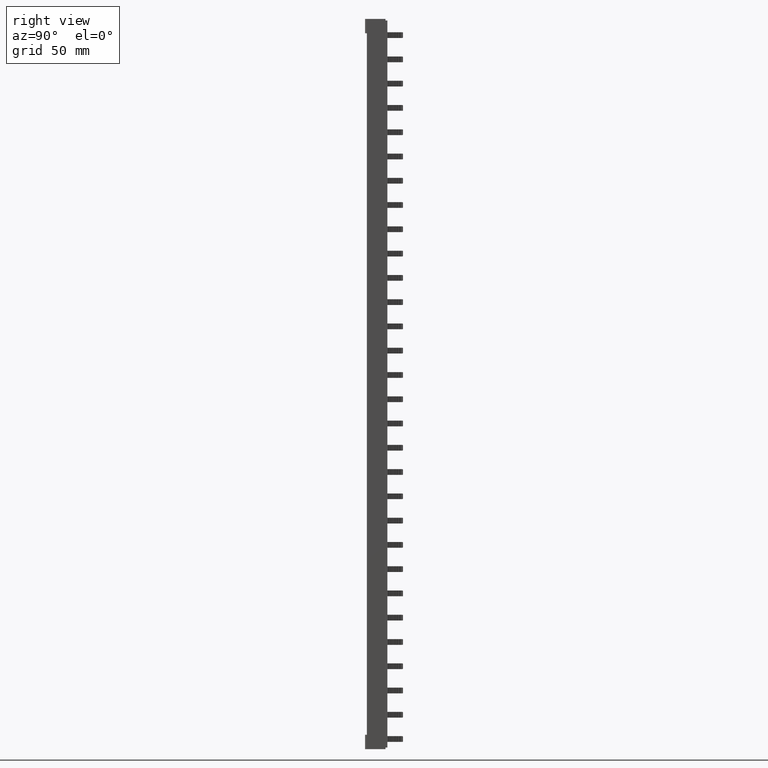
[diagram: clean part render]
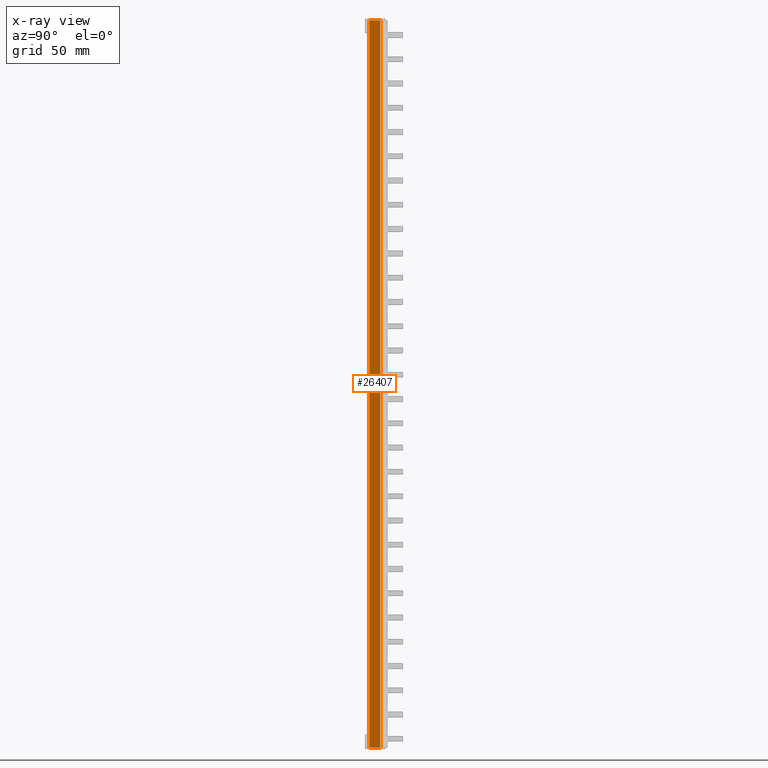
[diagram: x-ray — body ghosted, one internal face saturated and labeled with its STEP entity id]
A machine part, right view, then the same camera in x-ray: the body is ghosted and one INTERNAL B-rep face — a face not visible from any outside direction — is saturated and labeled: STEP entity #26407.
In plain terms, the highlighted planar face has unit normal (-1, 0, 0).
Its self-contained STEP definition (entity closure, byte-faithful):
#5752 = EDGE_LOOP ( 'NONE', ( #30492, #30483, #30490, #30475 ) ) ;
#6687 = EDGE_CURVE ( 'NONE', #26816, #26849, #39851, .T. ) ;
#6721 = EDGE_CURVE ( 'NONE', #26849, #26829, #40010, .T. ) ;
#6741 = EDGE_CURVE ( 'NONE', #26847, #26816, #40120, .T. ) ;
#6759 = EDGE_CURVE ( 'NONE', #26829, #26847, #40142, .T. ) ;
#9619 = PLANE ( 'NONE',  #22959 ) ;
#9638 = CARTESIAN_POINT ( 'NONE',  ( 5.599999999999383200, 1.799999999999940500, 220.2000000000000200 ) ) ;
#9649 = DIRECTION ( 'NONE',  ( 0.0000000000000000000, 0.0000000000000000000, 1.000000000000000000 ) ) ;
#9657 = FACE_OUTER_BOUND ( 'NONE', #5752, .T. ) ;
#9665 = DIRECTION ( 'NONE',  ( -1.000000000000000000, 0.0000000000000000000, 0.0000000000000000000 ) ) ;
#10474 = CARTESIAN_POINT ( 'NONE',  ( 5.599999999999383200, 1.799999999999940500, 217.7999999999973100 ) ) ;
#10498 = CARTESIAN_POINT ( 'NONE',  ( 5.599999999999383200, 1.799999999999940500, -313.8000000000030800 ) ) ;
#10508 = CARTESIAN_POINT ( 'NONE',  ( 5.599999999999383200, 9.799999999999947400, 217.7999999999973400 ) ) ;
#10513 = CARTESIAN_POINT ( 'NONE',  ( 5.599999999999383200, 9.799999999999947400, -313.8000000000026800 ) ) ;
#22959 = AXIS2_PLACEMENT_3D ( 'NONE', #9638, #9665, #9649 ) ;
#26407 = ADVANCED_FACE ( 'NONE', ( #9657 ), #9619, .T. ) ;
#26816 = VERTEX_POINT ( 'NONE', #10498 ) ;
#26829 = VERTEX_POINT ( 'NONE', #10508 ) ;
#26847 = VERTEX_POINT ( 'NONE', #10513 ) ;
#26849 = VERTEX_POINT ( 'NONE', #10474 ) ;
#30475 = ORIENTED_EDGE ( 'NONE', *, *, #6741, .T. ) ;
#30483 = ORIENTED_EDGE ( 'NONE', *, *, #6721, .T. ) ;
#30490 = ORIENTED_EDGE ( 'NONE', *, *, #6759, .T. ) ;
#30492 = ORIENTED_EDGE ( 'NONE', *, *, #6687, .T. ) ;
#38100 = VECTOR ( 'NONE', #39869, 1000.000000000000000 ) ;
#38145 = VECTOR ( 'NONE', #40078, 1000.000000000000000 ) ;
#38173 = VECTOR ( 'NONE', #40156, 1000.000000000000000 ) ;
#38208 = VECTOR ( 'NONE', #40013, 1000.000000000000000 ) ;
#39851 = LINE ( 'NONE', #39852, #38100 ) ;
#39852 = CARTESIAN_POINT ( 'NONE',  ( 5.599999999999383200, 1.799999999999940500, 220.2000000000000200 ) ) ;
#39869 = DIRECTION ( 'NONE',  ( 0.0000000000000000000, 0.0000000000000000000, 1.000000000000000000 ) ) ;
#39974 = CARTESIAN_POINT ( 'NONE',  ( 5.599999999999383200, 1.799999999999940500, 217.7999999999990200 ) ) ;
#40010 = LINE ( 'NONE', #39974, #38208 ) ;
#40013 = DIRECTION ( 'NONE',  ( 0.0000000000000000000, 1.000000000000000000, -0.0000000000000000000 ) ) ;
#40073 = CARTESIAN_POINT ( 'NONE',  ( 5.599999999999383200, 1.799999999999940500, -313.8000000000026300 ) ) ;
#40078 = DIRECTION ( 'NONE',  ( -0.0000000000000000000, -1.000000000000000000, 0.0000000000000000000 ) ) ;
#40120 = LINE ( 'NONE', #40073, #38145 ) ;
#40142 = LINE ( 'NONE', #40155, #38173 ) ;
#40155 = CARTESIAN_POINT ( 'NONE',  ( 5.599999999999383200, 9.799999999999947400, 220.2000000000000200 ) ) ;
#40156 = DIRECTION ( 'NONE',  ( -0.0000000000000000000, -0.0000000000000000000, -1.000000000000000000 ) ) ;